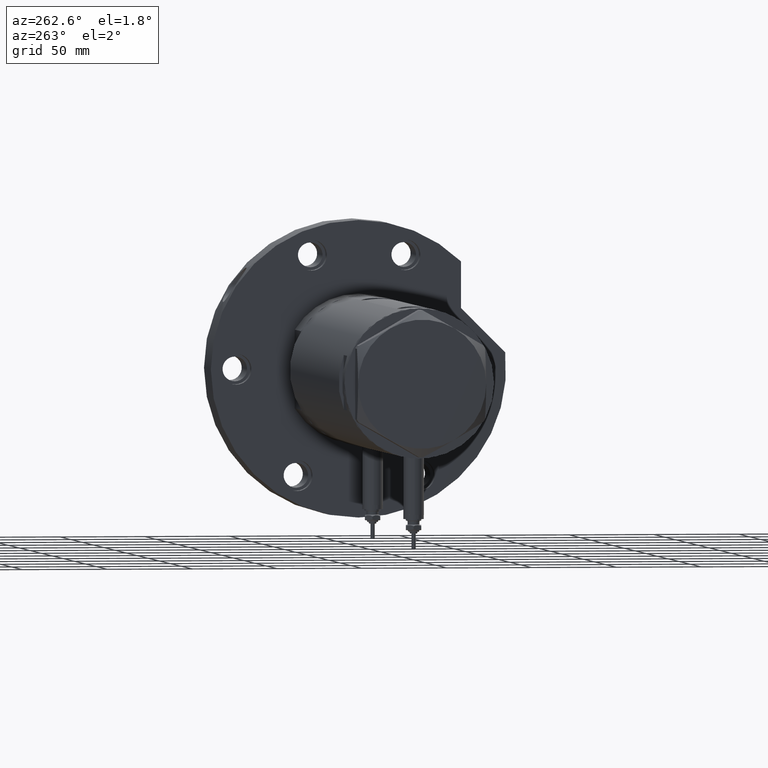
[diagram: clean part render]
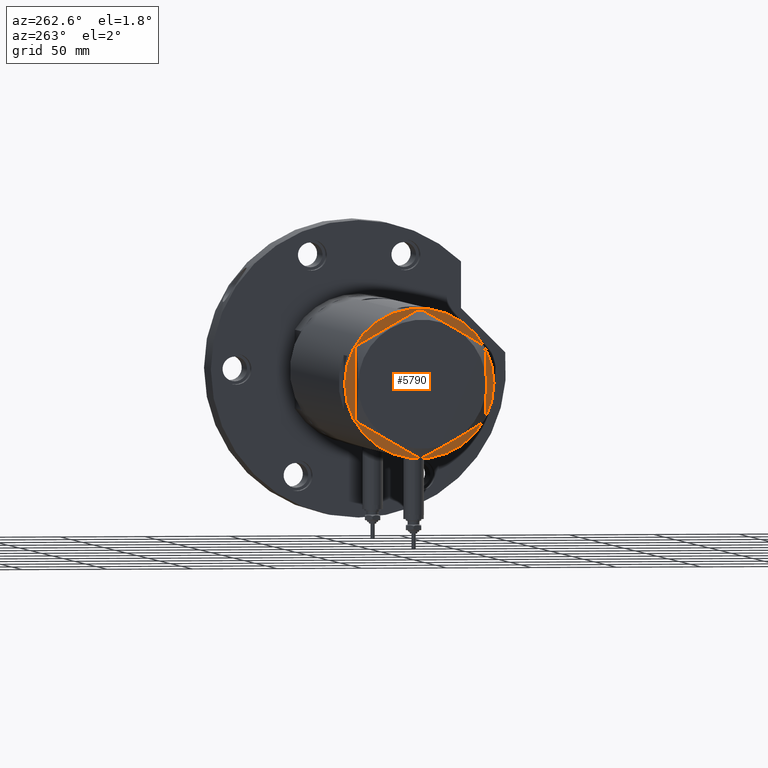
[diagram: same view with one face highlighted and labeled with its STEP entity id]
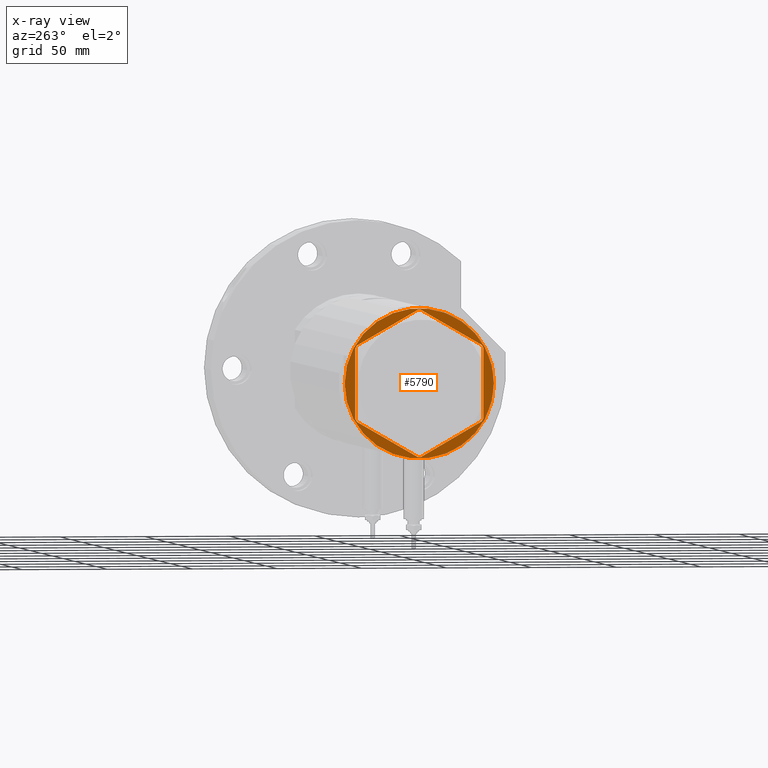
[diagram: x-ray of the same camera — body ghosted, the highlighted face saturated]
A machine part, auxiliary view. The second image highlights one B-rep face of the part: STEP entity #5790.
The next image is the same camera in x-ray: the body ghosted, the highlighted face saturated — about 0% of this face is hidden behind the body in this view.
In plain terms, the highlighted planar face has unit normal (1, 0, -0).
Its self-contained STEP definition (entity closure, byte-faithful):
#102 = VECTOR ( 'NONE', #6935, 1000.000000000000114 ) ;
#112 = VECTOR ( 'NONE', #5559, 999.9999999999998863 ) ;
#192 = LINE ( 'NONE', #3211, #1032 ) ;
#225 = LINE ( 'NONE', #6723, #1975 ) ;
#260 = VECTOR ( 'NONE', #400, 1000.000000000000000 ) ;
#323 = VERTEX_POINT ( 'NONE', #6120 ) ;
#341 = DIRECTION ( 'NONE',  ( 0.4999999999999978351, 0.8660254037844398178, -0.000000000000000000 ) ) ;
#387 = CARTESIAN_POINT ( 'NONE',  ( 36.78005154776142405, 22.35497266190837706, 0.000000000000000000 ) ) ;
#400 = DIRECTION ( 'NONE',  ( 3.183713056926429451E-16, -1.000000000000000000, 0.000000000000000000 ) ) ;
#429 = ORIENTED_EDGE ( 'NONE', *, *, #4016, .F. ) ;
#486 = CARTESIAN_POINT ( 'NONE',  ( 36.78005154776143115, -22.35497266190837706, 0.000000000000000000 ) ) ;
#800 = DIRECTION ( 'NONE',  ( -0.8660254037844387076, -0.4999999999999998890, 0.000000000000000000 ) ) ;
#847 = DIRECTION ( 'NONE',  ( 0.000000000000000000, 0.000000000000000000, -1.000000000000000000 ) ) ;
#931 = DIRECTION ( 'NONE',  ( -1.000000000000000000, 0.000000000000000000, 0.000000000000000000 ) ) ;
#1000 = LINE ( 'NONE', #6918, #3286 ) ;
#1021 = LINE ( 'NONE', #3836, #260 ) ;
#1025 = CARTESIAN_POINT ( 'NONE',  ( -37.74999999999999289, -21.79497266190838189, 0.000000000000000000 ) ) ;
#1032 = VECTOR ( 'NONE', #341, 1000.000000000000114 ) ;
#1093 = CARTESIAN_POINT ( 'NONE',  ( -37.75000000000000711, 20.67497266190837024, 0.000000000000000000 ) ) ;
#1134 = EDGE_CURVE ( 'NONE', #5137, #6247, #3721, .T. ) ;
#1252 = VECTOR ( 'NONE', #7367, 999.9999999999998863 ) ;
#1379 = CIRCLE ( 'NONE', #3450, 44.00000000000000000 ) ;
#1534 = CARTESIAN_POINT ( 'NONE',  ( 0.9699484522385760643, -43.02994532381674020, 0.000000000000000000 ) ) ;
#1662 = VERTEX_POINT ( 'NONE', #6317 ) ;
#1708 = CIRCLE ( 'NONE', #2317, 44.00000000000000000 ) ;
#1839 = VERTEX_POINT ( 'NONE', #6484 ) ;
#1907 = FACE_BOUND ( 'NONE', #5939, .T. ) ;
#1947 = ORIENTED_EDGE ( 'NONE', *, *, #7459, .F. ) ;
#1975 = VECTOR ( 'NONE', #4888, 1000.000000000000000 ) ;
#2066 = CARTESIAN_POINT ( 'NONE',  ( 0.000000000000000000, 0.000000000000000000, 0.000000000000000000 ) ) ;
#2141 = EDGE_CURVE ( 'NONE', #5137, #3411, #6326, .T. ) ;
#2298 = DIRECTION ( 'NONE',  ( -0.4999999999999981681, -0.8660254037844395958, -0.000000000000000000 ) ) ;
#2317 = AXIS2_PLACEMENT_3D ( 'NONE', #2066, #5577, #931 ) ;
#2426 = CARTESIAN_POINT ( 'NONE',  ( 0.000000000000000000, -43.02994532381674020, 0.000000000000000000 ) ) ;
#2429 = VECTOR ( 'NONE', #3260, 1000.000000000000227 ) ;
#2594 = CARTESIAN_POINT ( 'NONE',  ( 0.9699484522385850571, 43.02994532381674020, 0.000000000000000000 ) ) ;
#2649 = ORIENTED_EDGE ( 'NONE', *, *, #4572, .F. ) ;
#2660 = LINE ( 'NONE', #3840, #112 ) ;
#2713 = CARTESIAN_POINT ( 'NONE',  ( 37.75000000000002132, -21.79497266190837124, 0.000000000000000000 ) ) ;
#2752 = DIRECTION ( 'NONE',  ( -0.8660254037844385966, 0.5000000000000000000, 0.000000000000000000 ) ) ;
#2764 = ORIENTED_EDGE ( 'NONE', *, *, #4408, .T. ) ;
#2783 = LINE ( 'NONE', #2713, #3661 ) ;
#3041 = PLANE ( 'NONE',  #3049 ) ;
#3049 = AXIS2_PLACEMENT_3D ( 'NONE', #6559, #847, #7250 ) ;
#3135 = ORIENTED_EDGE ( 'NONE', *, *, #7413, .F. ) ;
#3147 = VERTEX_POINT ( 'NONE', #4804 ) ;
#3211 = CARTESIAN_POINT ( 'NONE',  ( -37.26502577388077242, 21.51497266190828483, 0.000000000000000000 ) ) ;
#3226 = CARTESIAN_POINT ( 'NONE',  ( 0.000000000000000000, 43.58994532381674247, 0.000000000000000000 ) ) ;
#3260 = DIRECTION ( 'NONE',  ( 0.8660254037844385966, -0.4999999999999998890, 0.000000000000000000 ) ) ;
#3286 = VECTOR ( 'NONE', #2752, 1000.000000000000227 ) ;
#3347 = VERTEX_POINT ( 'NONE', #2594 ) ;
#3411 = VERTEX_POINT ( 'NONE', #486 ) ;
#3450 = AXIS2_PLACEMENT_3D ( 'NONE', #3924, #5103, #4415 ) ;
#3661 = VECTOR ( 'NONE', #3815, 1000.000000000000000 ) ;
#3721 = LINE ( 'NONE', #2426, #4731 ) ;
#3741 = VERTEX_POINT ( 'NONE', #5438 ) ;
#3815 = DIRECTION ( 'NONE',  ( -4.775569585389645902E-16, 1.000000000000000000, 0.000000000000000000 ) ) ;
#3836 = CARTESIAN_POINT ( 'NONE',  ( -37.75000000000000711, 21.79497266190837124, 0.000000000000000000 ) ) ;
#3840 = CARTESIAN_POINT ( 'NONE',  ( -37.26502577388070847, -21.51497266190838076, 0.000000000000000000 ) ) ;
#3922 = ORIENTED_EDGE ( 'NONE', *, *, #7086, .T. ) ;
#3924 = CARTESIAN_POINT ( 'NONE',  ( 0.000000000000000000, 0.000000000000000000, 0.000000000000000000 ) ) ;
#4016 = EDGE_CURVE ( 'NONE', #5326, #1839, #2783, .T. ) ;
#4198 = CARTESIAN_POINT ( 'NONE',  ( 37.75000000000002132, -20.67497266190835958, 0.000000000000000000 ) ) ;
#4408 = EDGE_CURVE ( 'NONE', #1662, #3741, #2660, .T. ) ;
#4415 = DIRECTION ( 'NONE',  ( -1.000000000000000000, 0.000000000000000000, 0.000000000000000000 ) ) ;
#4426 = EDGE_LOOP ( 'NONE', ( #1947, #2649 ) ) ;
#4477 = EDGE_CURVE ( 'NONE', #1662, #6247, #5716, .T. ) ;
#4572 = EDGE_CURVE ( 'NONE', #3147, #4780, #1708, .T. ) ;
#4658 = EDGE_CURVE ( 'NONE', #6408, #6162, #192, .T. ) ;
#4731 = VECTOR ( 'NONE', #4754, 1000.000000000000000 ) ;
#4754 = DIRECTION ( 'NONE',  ( -1.000000000000000000, -0.000000000000000000, -0.000000000000000000 ) ) ;
#4780 = VERTEX_POINT ( 'NONE', #5052 ) ;
#4804 = CARTESIAN_POINT ( 'NONE',  ( -44.00000000000000000, 5.388445916248353619E-15, 0.000000000000000000 ) ) ;
#4843 = FACE_OUTER_BOUND ( 'NONE', #4426, .T. ) ;
#4888 = DIRECTION ( 'NONE',  ( 1.000000000000000000, -0.000000000000000000, -0.000000000000000000 ) ) ;
#4903 = VECTOR ( 'NONE', #2298, 1000.000000000000227 ) ;
#5043 = CARTESIAN_POINT ( 'NONE',  ( 37.26502577388072979, 21.51497266190834523, 0.000000000000000000 ) ) ;
#5052 = CARTESIAN_POINT ( 'NONE',  ( 44.00000000000000000, 0.000000000000000000, 0.000000000000000000 ) ) ;
#5101 = ORIENTED_EDGE ( 'NONE', *, *, #4658, .T. ) ;
#5103 = DIRECTION ( 'NONE',  ( 0.000000000000000000, 0.000000000000000000, -1.000000000000000000 ) ) ;
#5123 = CARTESIAN_POINT ( 'NONE',  ( 37.26502577388077242, -21.51497266190830260, 0.000000000000000000 ) ) ;
#5137 = VERTEX_POINT ( 'NONE', #1534 ) ;
#5177 = EDGE_CURVE ( 'NONE', #6710, #3347, #1000, .T. ) ;
#5317 = ORIENTED_EDGE ( 'NONE', *, *, #4477, .F. ) ;
#5326 = VERTEX_POINT ( 'NONE', #4198 ) ;
#5331 = CARTESIAN_POINT ( 'NONE',  ( -36.78005154776143826, 22.35497266190836996, 0.000000000000000000 ) ) ;
#5438 = CARTESIAN_POINT ( 'NONE',  ( -37.74999999999999289, -20.67497266190837379, 0.000000000000000000 ) ) ;
#5559 = DIRECTION ( 'NONE',  ( -0.5000000000000002220, 0.8660254037844385966, -0.000000000000000000 ) ) ;
#5577 = DIRECTION ( 'NONE',  ( 0.000000000000000000, 0.000000000000000000, -1.000000000000000000 ) ) ;
#5716 = LINE ( 'NONE', #1025, #2429 ) ;
#5784 = ORIENTED_EDGE ( 'NONE', *, *, #6851, .T. ) ;
#5790 = ADVANCED_FACE ( 'NONE', ( #1907, #4843 ), #3041, .F. ) ;
#5791 = ORIENTED_EDGE ( 'NONE', *, *, #6396, .F. ) ;
#5876 = CARTESIAN_POINT ( 'NONE',  ( -0.9699484522385920515, -43.02994532381674020, 0.000000000000000000 ) ) ;
#5939 = EDGE_LOOP ( 'NONE', ( #7287, #3922, #429, #5784, #6936, #6541, #5317, #2764, #5791, #5101, #3135, #7093 ) ) ;
#6104 = LINE ( 'NONE', #3226, #6736 ) ;
#6120 = CARTESIAN_POINT ( 'NONE',  ( -0.9699484522385801721, 43.02994532381674020, 0.000000000000000000 ) ) ;
#6162 = VERTEX_POINT ( 'NONE', #5331 ) ;
#6247 = VERTEX_POINT ( 'NONE', #5876 ) ;
#6317 = CARTESIAN_POINT ( 'NONE',  ( -36.78005154776141694, -22.35497266190838772, 0.000000000000000000 ) ) ;
#6326 = LINE ( 'NONE', #6817, #102 ) ;
#6396 = EDGE_CURVE ( 'NONE', #6408, #3741, #1021, .T. ) ;
#6408 = VERTEX_POINT ( 'NONE', #1093 ) ;
#6484 = CARTESIAN_POINT ( 'NONE',  ( 37.75000000000000000, 20.67497266190835958, 0.000000000000000000 ) ) ;
#6541 = ORIENTED_EDGE ( 'NONE', *, *, #1134, .T. ) ;
#6559 = CARTESIAN_POINT ( 'NONE',  ( 0.000000000000000000, 0.000000000000000000, 0.000000000000000000 ) ) ;
#6710 = VERTEX_POINT ( 'NONE', #387 ) ;
#6723 = CARTESIAN_POINT ( 'NONE',  ( 0.000000000000000000, 43.02994532381674020, 0.000000000000000000 ) ) ;
#6736 = VECTOR ( 'NONE', #800, 1000.000000000000000 ) ;
#6760 = LINE ( 'NONE', #5043, #1252 ) ;
#6817 = CARTESIAN_POINT ( 'NONE',  ( -4.107234936485837051E-15, -43.58994532381674247, 0.000000000000000000 ) ) ;
#6851 = EDGE_CURVE ( 'NONE', #5326, #3411, #6887, .T. ) ;
#6887 = LINE ( 'NONE', #5123, #4903 ) ;
#6918 = CARTESIAN_POINT ( 'NONE',  ( 37.75000000000000000, 21.79497266190837124, 0.000000000000000000 ) ) ;
#6935 = DIRECTION ( 'NONE',  ( 0.8660254037844388186, 0.4999999999999997224, 0.000000000000000000 ) ) ;
#6936 = ORIENTED_EDGE ( 'NONE', *, *, #2141, .F. ) ;
#7034 = EDGE_CURVE ( 'NONE', #323, #3347, #225, .T. ) ;
#7086 = EDGE_CURVE ( 'NONE', #6710, #1839, #6760, .T. ) ;
#7093 = ORIENTED_EDGE ( 'NONE', *, *, #7034, .T. ) ;
#7250 = DIRECTION ( 'NONE',  ( -1.000000000000000000, 0.000000000000000000, -0.000000000000000000 ) ) ;
#7287 = ORIENTED_EDGE ( 'NONE', *, *, #5177, .F. ) ;
#7367 = DIRECTION ( 'NONE',  ( 0.4999999999999993894, -0.8660254037844390407, -0.000000000000000000 ) ) ;
#7413 = EDGE_CURVE ( 'NONE', #323, #6162, #6104, .T. ) ;
#7459 = EDGE_CURVE ( 'NONE', #4780, #3147, #1379, .T. ) ;